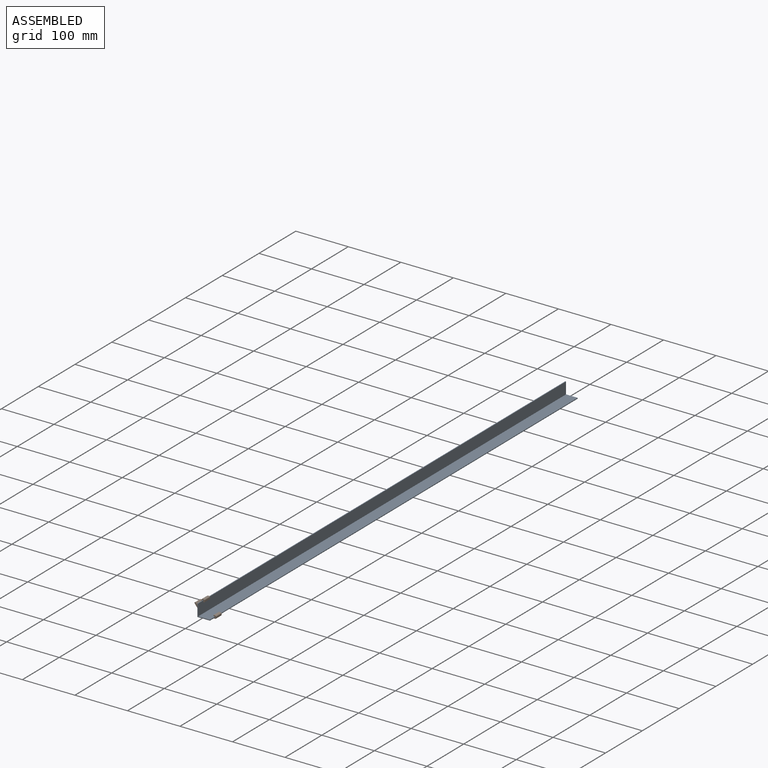
[diagram: assembled view]
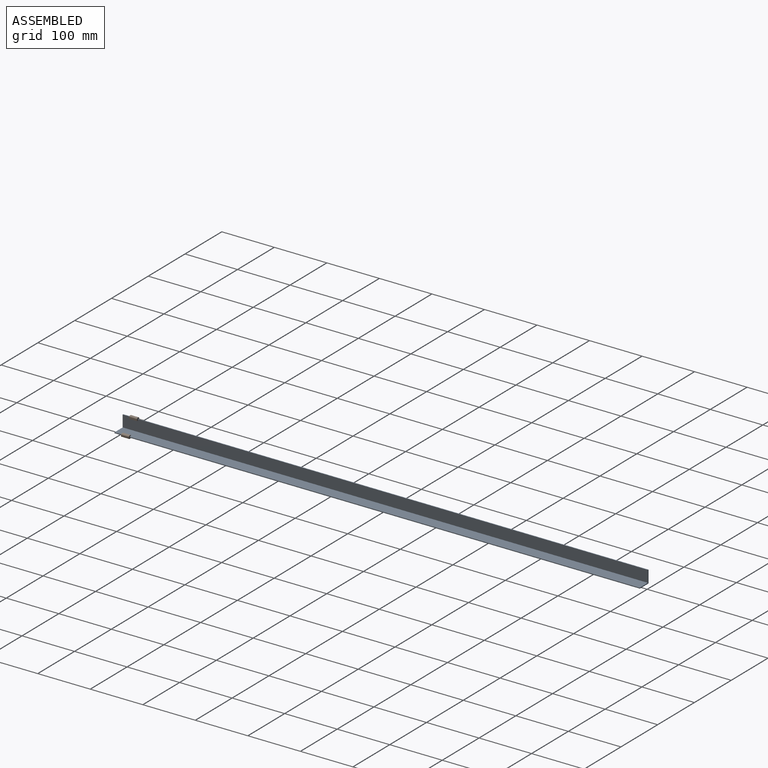
[diagram: assembled view, second angle]
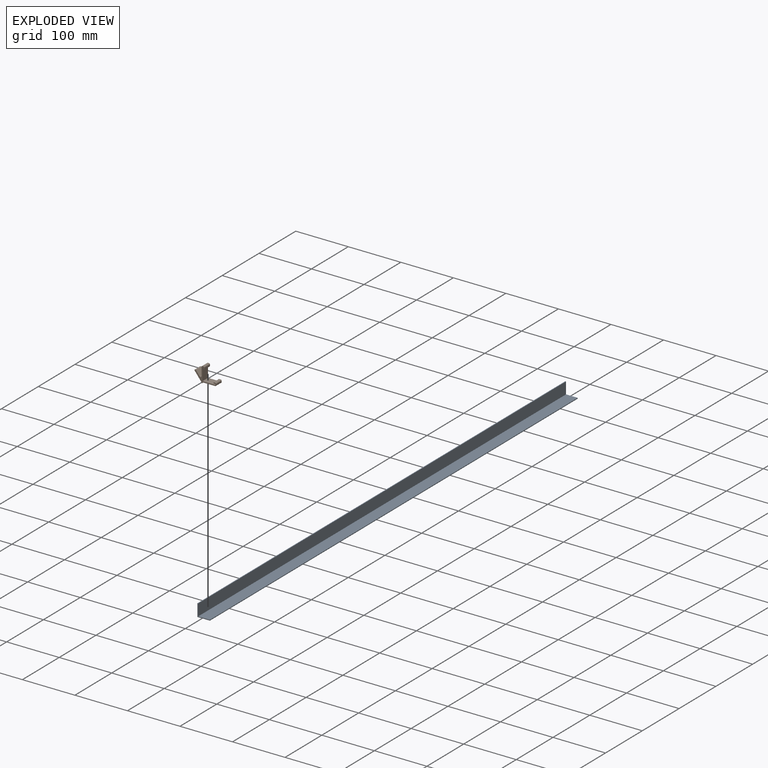
[diagram: exploded view]
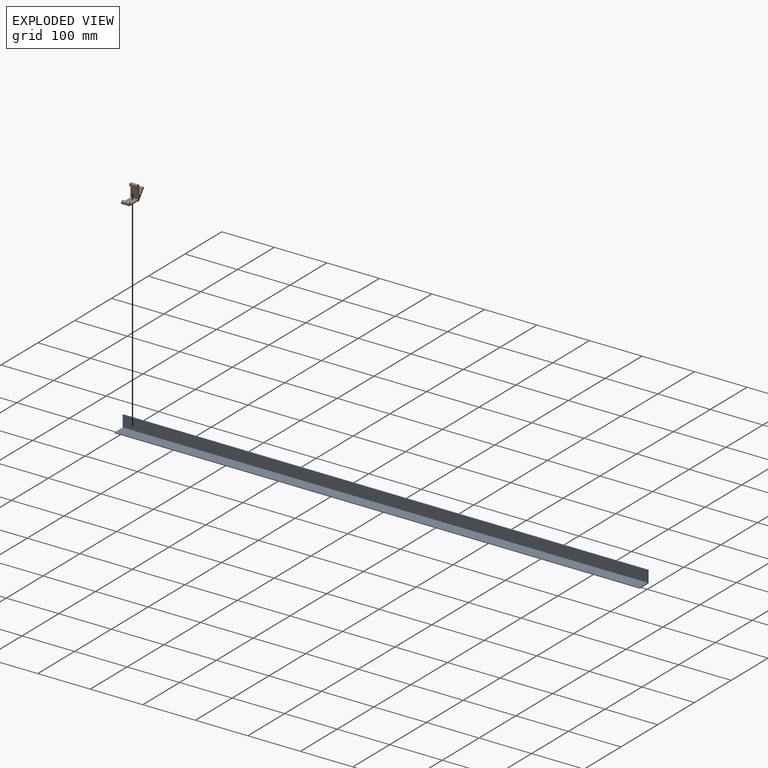
[diagram: exploded view, second angle]
ASSEMBLY  parts=2 mates=2
PART A: 8 faces, bbox 23.7x1000x23.7 mm
  f0: plane 1000x23.7mm, normal (-1,0,0), area 23700mm2, adj f1,f5,f6,f7
  f1: plane 1000x23.7mm, normal (0,0,-1), area 23700mm2, adj f0,f2,f6,f7
  f2: plane 1000x1.5mm, normal (1,0,0), area 1500mm2, adj f1,f3,f6,f7
  f3: plane 1000x22.2mm, normal (0,0,1), area 22200mm2, adj f2,f4,f6,f7
  f4: plane 1000x22.2mm, normal (1,0,0), area 22200mm2, adj f3,f5,f6,f7
  f5: plane 1000x1.5mm, normal (0,0,1), area 1500mm2, adj f0,f4,f6,f7
  f6: plane 23.7x23.7mm, normal (0,-1,0), area 68.8mm2, adj f0,f1,f2,f3,f4,f5
  f7: plane 23.7x23.7mm, normal (0,1,0), area 68.8mm2, adj f0,f1,f2,f3,f4,f5
PART B: 27 faces, bbox 38.4x15x24.9 mm
  f0: plane 15x1.58mm, normal (0.62,0,0.79), area 30mm2, adj f1,f18,f19,f20
  f1: plane 15x2.36mm, normal (-0.79,0,0.62), area 45mm2, adj f0,f2,f19,f20
  f2: plane 15x1.34mm, normal (0.62,0,0.79), area 25.5mm2, adj f1,f3,f19,f20
  f3: plane 18.83x15mm, normal (0.79,0,-0.62), area 358.5mm2, adj f2,f4,f19,f20
  f4: plane 18.83x15mm, normal (-0.62,0,-0.79), area 358.5mm2, adj f3,f5,f19,f20
  f5: plane 15x1.34mm, normal (-0.79,0,0.62), area 25.5mm2, adj f4,f6,f19,f20
  f6: plane 15x2.36mm, normal (0.62,0,0.79), area 45mm2, adj f5,f7,f19,f20
  f7: plane 15x1.58mm, normal (-0.79,0,0.62), area 30mm2, adj f6,f8,f19,f20
  f8: plane 15x2.36mm, normal (-0.62,0,-0.79), area 45mm2, adj f7,f19,f20,f21
  f9: plane 15x1.34mm, normal (0.79,0,-0.62), area 25.5mm2, adj f19,f20,f21,f22
  f10: plane 15x12.24mm, normal (0.62,0,0.79), area 233mm2, adj f11,f19,f20,f22
  f11: cylinder r=2mm len=15mm, axis (0,1,0), area 74.4mm2, adj f10,f12,f19,f20
  f12: plane 15x10.58mm, normal (0,0,-1), area 158.8mm2, adj f11,f19,f20,f23
  f13: plane 15x1mm, normal (1,0,0), area 15mm2, adj f14,f19,f20,f23
  f14: plane 24.18x15mm, normal (0,0,1), area 362.7mm2, adj f13,f15,f19,f20
  f15: plane 15x2.31mm, normal (-1,0,0), area 34.7mm2, adj f14,f19,f20,f24
  f16: plane 17.06x15mm, normal (-0.79,0,0.62), area 324.7mm2, adj f19,f20,f24,f25
  f17: plane 15x1.34mm, normal (-0.62,0,-0.79), area 25.5mm2, adj f19,f20,f25,f26
  f18: plane 15x2.36mm, normal (0.79,0,-0.62), area 45mm2, adj f0,f19,f20,f26
  f19: plane 38.36x24.88mm, normal (0,-1,0), area 201.2mm2, adj f0,f1,f2,f3,f4,f5,f6,f7
  f20: plane 38.36x24.88mm, normal (0,1,0), area 201.2mm2, adj f0,f1,f2,f3,f4,f5,f6,f7
  f21: cylinder r=2mm len=15mm, axis (0,1,0), area 47.1mm2, adj f8,f9,f19,f20
  f22: cylinder r=2mm len=15mm, axis (0,-1,0), area 47.1mm2, adj f9,f10,f19,f20
  f23: cylinder r=2mm len=15mm, axis (0,1,0), area 47.1mm2, adj f12,f13,f19,f20
  f24: cylinder r=2mm len=15mm, axis (0,1,0), area 19.9mm2, adj f15,f16,f19,f20
  f25: cylinder r=2mm len=15mm, axis (0,1,0), area 47.1mm2, adj f16,f17,f19,f20
  f26: cylinder r=2mm len=15mm, axis (0,1,0), area 47.1mm2, adj f17,f18,f19,f20
PLACE A t=(14.3,-287.38,35.98)mm
PLACE B rot(axis=(0,-1,0),128deg) t=(14.3,-1258.5,35.98)mm
MATE planar B.f3 <-> A.f1  axis (0,0,1) through (26.25,-1266,35.98)mm
MATE planar B.f4 <-> A.f0  axis (1,0,0) through (14.3,-1266,47.93)mm
